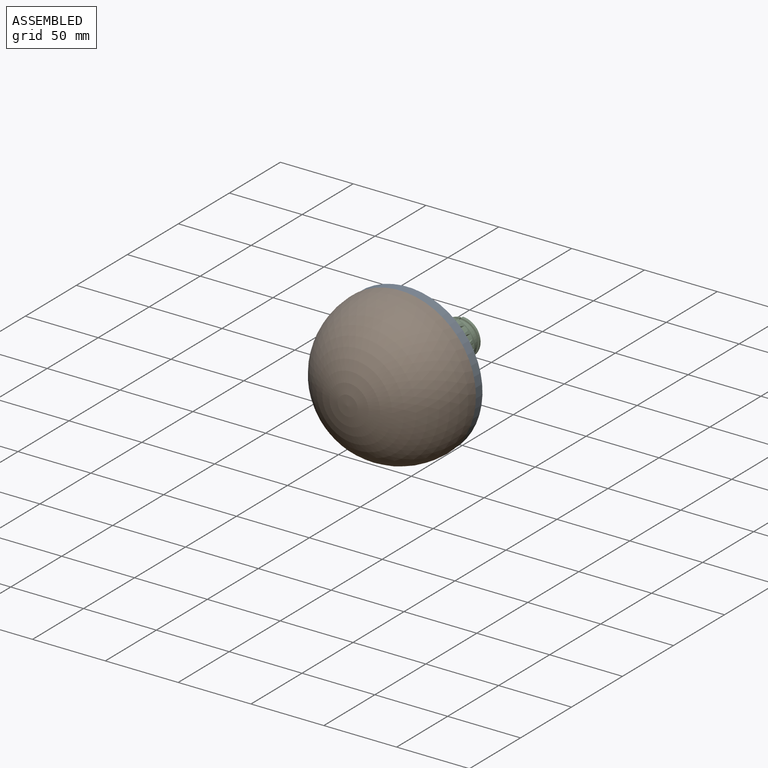
[diagram: assembled view]
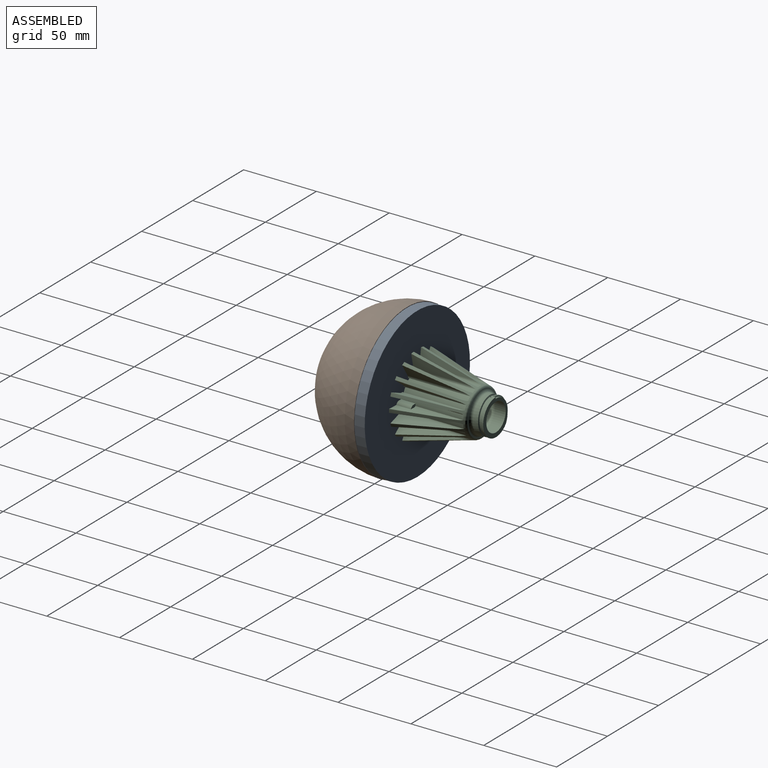
[diagram: assembled view, second angle]
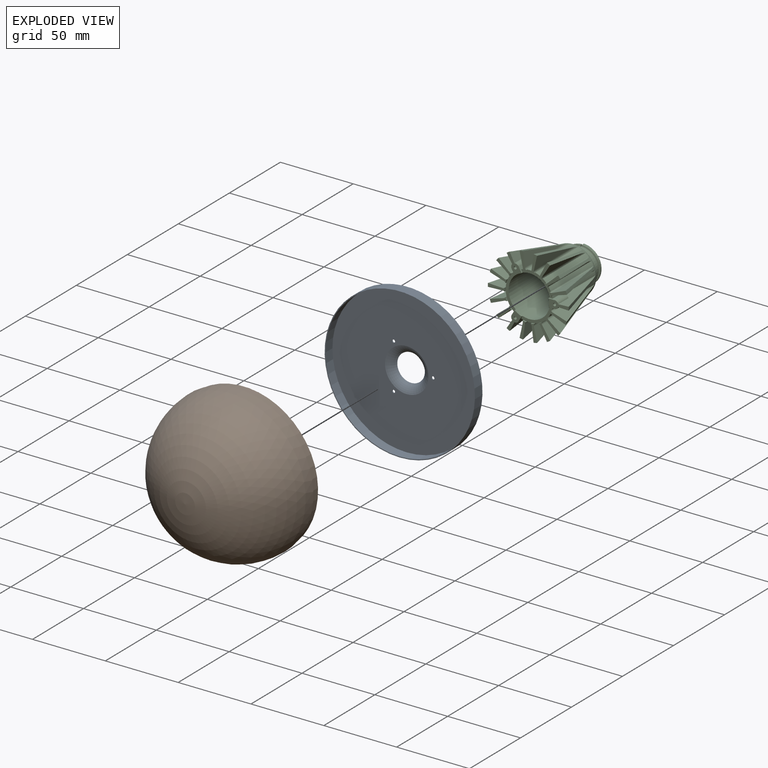
[diagram: exploded view]
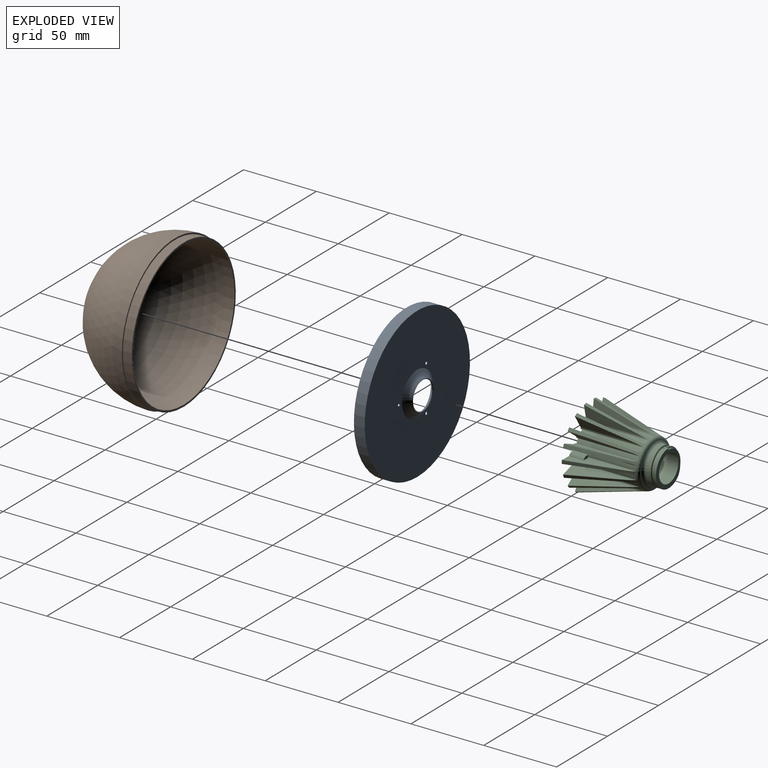
[diagram: exploded view, second angle]
ASSEMBLY  parts=3 mates=4
PART A: 11 faces, bbox 103.2x16.2x103.2 mm
  f0: cylinder r=1mm len=2mm, axis (0,1,0), area 3.8mm2, adj f4,f8
  f1: cylinder r=1mm len=2mm, axis (0,1,0), area 3.8mm2, adj f4,f8
  f2: plane 103.2x103.2mm, normal (0,-1,0), area 193.4mm2, adj f3,f9
  f3: cylinder r=51mm len=102mm, axis (0,-1,0), area 2183.2mm2, adj f2,f4
  f4: plane 102x102mm, normal (0,-1,0), area 7464mm2, adj f0,f1,f3,f5,f10
  f5: torus R=17.92mm, axis (0,-1,0), area 529.6mm2, adj f4,f6
  f6: cone r=9.49mm half-angle=58.9deg, axis (0,1,0), area 36.7mm2, adj f5,f7
  f7: torus R=17.92mm, axis (0,-1,0), area 503.8mm2, adj f6,f8
  f8: plane 103.2x103.2mm, normal (0,1,0), area 7648.4mm2, adj f0,f1,f7,f9,f10
  f9: cylinder r=51.6mm len=103.2mm, axis (0,-1,0), area 2403.4mm2, adj f2,f8
  f10: cylinder r=1mm len=2mm, axis (0,1,0), area 3.8mm2, adj f4,f8
PART B: 6 faces, bbox 104x58x104 mm
  f0: sphere r=49.75mm, area 15551.3mm2, adj f1
  f1: cylinder r=49.75mm len=99.5mm, axis (0,-1,0), area 1875.5mm2, adj f0,f2
  f2: plane 102x102mm, normal (0,1,0), area 395.6mm2, adj f1,f3
  f3: cylinder r=51mm len=102mm, axis (0,-1,0), area 1951.7mm2, adj f2,f4
  f4: plane 104x104mm, normal (0,1,0), area 323.6mm2, adj f3,f5
  f5: sphere r=52mm, area 16960.1mm2, adj f4
PART C: 175 faces, bbox 55.6x54.7x55.6 mm
  f0: cylinder r=12.5mm len=25mm, axis (0,-1,0), area 299.7mm2, adj f1,f2,f137,f169,f172
  f1: bspline ~28.87x25mm, area 96.9mm2, adj f0,f3,f169,f172
  f2: bspline ~18.75x14.43mm, area 19.1mm2, adj f0,f3,f169,f172
  f3: cylinder r=11.5mm len=23mm, axis (0,-1,0), area 152mm2, adj f1,f2,f4,f169,f170,f171,f172,f173
  f4: plane 25.07x24.08mm, normal (0,1,0), area 182.7mm2, adj f3,f135,f136,f170,f171,f172,f174
  f5: plane 10x3.32mm, normal (-0.87,0,-0.5), area 19.8mm2, adj f6,f8,f9,f11,f12,f15,f24
  f6: cylinder r=14.22mm len=4.75mm, axis (0,-1,0), area 5.5mm2, adj f5,f7,f8,f9
  f7: plane 10x3.32mm, normal (0.87,0,0.5), area 19.8mm2, adj f6,f8,f9,f10,f13,f14,f16
  f8: plane 4.76x2.77mm, normal (0,1,0), area 0.1mm2, adj f5,f6,f7,f133
  f9: plane 13.9x10.31mm, normal (0,-1,0), area 44.8mm2, adj f5,f6,f7,f11,f13,f49,f53,f140
  f10: plane 21.65x13.51mm, normal (0,-1,0), area 52.9mm2, adj f7,f16,f56,f60,f63,f67,f70,f74
  f11: cylinder r=2.75mm len=10mm, axis (0,-1,0), area 36.1mm2, adj f5,f9,f12,f49
  f12: plane 4.89x2.59mm, normal (0,1,0), area 7.1mm2, adj f5,f11,f15,f17,f49
  f13: cylinder r=2.75mm len=10mm, axis (0,-1,0), area 36.1mm2, adj f7,f9,f14,f53
  f14: plane 3.89x3.67mm, normal (0,1,0), area 7.1mm2, adj f7,f13,f16,f18,f53
  f15: cylinder r=16.25mm len=41.89mm, axis (0,-1,0), area 117.3mm2, adj f5,f12,f17,f24,f51,f140
  f16: cylinder r=16.25mm len=41.89mm, axis (0,-1,0), area 117.3mm2, adj f7,f10,f14,f18,f54,f140
  f17: cylinder r=2mm len=32.89mm, axis (0,-1,0), area 46.9mm2, adj f12,f15,f49,f140
  f18: cylinder r=2mm len=32.89mm, axis (0,-1,0), area 46.9mm2, adj f14,f16,f53,f140
  f19: plane 37.72x10.1mm, normal (-0.04,0,1), area 160.9mm2, adj f86,f89,f140,f152,f153
  f20: plane 37.72x10.1mm, normal (-0.04,0,-1), area 160.9mm2, adj f89,f93,f140,f150,f151
  f21: plane 37.72x8.97mm, normal (0.89,0,-0.46), area 160.9mm2, adj f22,f127,f140,f161,f162
  f22: cylinder r=2mm len=32.89mm, axis (0,-1,0), area 46.9mm2, adj f21,f125,f140,f162
  f23: cylinder r=2mm len=32.89mm, axis (0,-1,0), area 46.9mm2, adj f129,f131,f140,f159
  f24: plane 25x6.88mm, normal (0,-1,0), area 52.9mm2, adj f5,f15,f27,f31,f34,f38,f41,f45
  f25: plane 21.65x13.51mm, normal (0,-1,0), area 52.9mm2, adj f92,f95,f99,f102,f106,f109,f113,f116
  f26: plane 11.68x6.28mm, normal (0,-1,0), area 22.6mm2, adj f27,f29,f32,f140,f145,f146
  f27: cylinder r=16.25mm len=2.4mm, axis (0,-1,0), area 2.6mm2, adj f24,f26,f32,f145
  f28: plane 37.72x10.1mm, normal (0.04,0,-1), area 190.7mm2, adj f30,f33,f140
  f29: plane 37.72x9.65mm, normal (-0.3,0,0.95), area 190.7mm2, adj f26,f32,f140
  f30: cylinder r=2mm len=42.89mm, axis (0,-1,0), area 62.3mm2, adj f28,f31,f33,f34,f140
  f31: cylinder r=16.25mm len=41.89mm, axis (0,-1,0), area 130.6mm2, adj f24,f30,f32,f140
  f32: cylinder r=2mm len=42.89mm, axis (0,-1,0), area 62.3mm2, adj f26,f27,f29,f31,f140
  f33: plane 11.55x2.55mm, normal (0,-1,0), area 22.6mm2, adj f28,f30,f34,f36,f39,f140
  f34: cylinder r=16.25mm len=2.55mm, axis (0,-1,0), area 2.6mm2, adj f24,f30,f33,f39
  f35: plane 37.72x9.65mm, normal (-0.3,0,-0.95), area 190.7mm2, adj f37,f40,f140
  f36: plane 37.72x10.1mm, normal (0.04,0,1), area 190.7mm2, adj f33,f39,f140
  f37: cylinder r=2mm len=42.89mm, axis (0,-1,0), area 62.3mm2, adj f35,f38,f40,f41,f140
  f38: cylinder r=16.25mm len=41.89mm, axis (0,-1,0), area 130.6mm2, adj f24,f37,f39,f140
  f39: cylinder r=2mm len=42.89mm, axis (0,-1,0), area 62.3mm2, adj f33,f34,f36,f38,f140
  f40: plane 11.68x6.28mm, normal (0,-1,0), area 22.6mm2, adj f35,f37,f41,f43,f46,f140
  f41: cylinder r=16.25mm len=2.4mm, axis (0,-1,0), area 2.6mm2, adj f24,f37,f40,f46
  f42: plane 37.72x8.02mm, normal (-0.61,0,-0.79), area 190.7mm2, adj f44,f47,f140
  f43: plane 37.72x9.34mm, normal (0.38,0,0.92), area 190.7mm2, adj f40,f46,f140
  f44: cylinder r=2mm len=42.89mm, axis (0,-1,0), area 62.3mm2, adj f42,f45,f47,f48,f140
  f45: cylinder r=16.25mm len=41.89mm, axis (0,-1,0), area 130.6mm2, adj f24,f44,f46,f140
  f46: cylinder r=2mm len=42.89mm, axis (0,-1,0), area 62.3mm2, adj f40,f41,f43,f45,f140
  f47: plane 10.43x9.31mm, normal (0,-1,0), area 22.6mm2, adj f42,f44,f48,f50,f51,f140
  f48: cylinder r=16.25mm len=1.96mm, axis (0,-1,0), area 2.6mm2, adj f24,f44,f47,f51
  f49: plane 37.72x8.53mm, normal (-0.84,0,-0.54), area 160.9mm2, adj f9,f11,f12,f17,f140
  f50: plane 37.72x7.46mm, normal (0.68,0,0.74), area 190.7mm2, adj f47,f51,f140
  f51: cylinder r=2mm len=42.89mm, axis (0,-1,0), area 62.3mm2, adj f15,f47,f48,f50,f140
  f52: plane 37.72x9.87mm, normal (-0.98,0,-0.22), area 190.7mm2, adj f54,f55,f140
  f53: plane 37.72x8.97mm, normal (0.89,0,0.46), area 160.9mm2, adj f9,f13,f14,f18,f140
  f54: cylinder r=2mm len=42.89mm, axis (0,-1,0), area 62.3mm2, adj f16,f52,f55,f56,f140
  f55: plane 11.78x4.45mm, normal (0,-1,0), area 22.6mm2, adj f52,f54,f56,f58,f61,f140
  f56: cylinder r=16.25mm len=2.51mm, axis (0,-1,0), area 2.6mm2, adj f10,f54,f55,f61
  f57: plane 37.72x10.03mm, normal (-0.99,0,0.13), area 190.7mm2, adj f59,f62,f140
  f58: plane 37.72x10.03mm, normal (0.99,0,0.13), area 190.7mm2, adj f55,f61,f140
  f59: cylinder r=2mm len=42.89mm, axis (0,-1,0), area 62.3mm2, adj f57,f60,f62,f63,f140
  f60: cylinder r=16.25mm len=41.89mm, axis (0,-1,0), area 130.6mm2, adj f10,f59,f61,f140
  f61: cylinder r=2mm len=42.89mm, axis (0,-1,0), area 62.3mm2, adj f55,f56,f58,f60,f140
  f62: plane 11.78x4.45mm, normal (0,-1,0), area 22.6mm2, adj f57,f59,f63,f65,f68,f140
  f63: cylinder r=16.25mm len=2.51mm, axis (0,-1,0), area 2.6mm2, adj f10,f59,f62,f68
  f64: plane 37.72x8.97mm, normal (-0.89,0,0.46), area 190.7mm2, adj f66,f69,f140
  f65: plane 37.72x9.87mm, normal (0.98,0,-0.22), area 190.7mm2, adj f62,f68,f140
  f66: cylinder r=2mm len=42.89mm, axis (0,-1,0), area 62.3mm2, adj f64,f67,f69,f70,f140
  f67: cylinder r=16.25mm len=41.89mm, axis (0,-1,0), area 130.6mm2, adj f10,f66,f68,f140
  f68: cylinder r=2mm len=42.89mm, axis (0,-1,0), area 62.3mm2, adj f62,f63,f65,f67,f140
  f69: plane 11.22x7.92mm, normal (0,-1,0), area 22.6mm2, adj f64,f66,f70,f72,f75,f140
  f70: cylinder r=16.25mm len=2.21mm, axis (0,-1,0), area 2.6mm2, adj f10,f66,f69,f75
  f71: plane 37.72x7.46mm, normal (-0.68,0,0.74), area 190.7mm2, adj f73,f76,f140
  f72: plane 37.72x8.53mm, normal (0.84,0,-0.54), area 190.7mm2, adj f69,f75,f140
  f73: cylinder r=2mm len=42.89mm, axis (0,-1,0), area 62.3mm2, adj f71,f74,f76,f77,f140
  f74: cylinder r=16.25mm len=41.89mm, axis (0,-1,0), area 130.6mm2, adj f10,f73,f75,f140
  f75: cylinder r=2mm len=42.89mm, axis (0,-1,0), area 62.3mm2, adj f69,f70,f72,f74,f140
  f76: plane 10.43x9.31mm, normal (0,-1,0), area 22.6mm2, adj f71,f73,f77,f79,f82,f140
  f77: cylinder r=16.25mm len=1.96mm, axis (0,-1,0), area 2.6mm2, adj f10,f73,f76,f82
  f78: plane 37.72x9.34mm, normal (-0.38,0,0.92), area 190.7mm2, adj f80,f83,f140
  f79: plane 37.72x8.02mm, normal (0.61,0,-0.79), area 190.7mm2, adj f76,f82,f140
  f80: cylinder r=2mm len=42.89mm, axis (0,-1,0), area 62.3mm2, adj f78,f81,f83,f84,f140
  f81: cylinder r=16.25mm len=41.89mm, axis (0,-1,0), area 130.6mm2, adj f10,f80,f82,f140
  f82: cylinder r=2mm len=42.89mm, axis (0,-1,0), area 62.3mm2, adj f76,f77,f79,f81,f140
  f83: plane 11.68x6.28mm, normal (0,-1,0), area 22.6mm2, adj f78,f80,f84,f85,f88,f140
  f84: cylinder r=16.25mm len=2.4mm, axis (0,-1,0), area 2.6mm2, adj f10,f80,f83,f88
  f85: plane 37.72x9.65mm, normal (0.3,0,-0.95), area 190.7mm2, adj f83,f88,f140
  f86: cylinder r=2mm len=32.89mm, axis (0,-1,0), area 46.9mm2, adj f19,f87,f140,f152
  f87: cylinder r=16.25mm len=41.89mm, axis (0,-1,0), area 117.3mm2, adj f10,f86,f88,f140,f149,f152
  f88: cylinder r=2mm len=42.89mm, axis (0,-1,0), area 62.3mm2, adj f83,f84,f85,f87,f140
  f89: plane 13.79x5.5mm, normal (0,-1,0), area 44.8mm2, adj f19,f20,f140,f147,f148,f149,f151,f153
  f90: plane 37.72x9.65mm, normal (0.3,0,0.95), area 190.7mm2, adj f91,f94,f140
  f91: cylinder r=2mm len=42.89mm, axis (0,-1,0), area 62.3mm2, adj f90,f92,f94,f95,f140
  f92: cylinder r=16.25mm len=41.89mm, axis (0,-1,0), area 117.3mm2, adj f25,f91,f93,f140,f148,f150
  f93: cylinder r=2mm len=32.89mm, axis (0,-1,0), area 46.9mm2, adj f20,f92,f140,f150
  f94: plane 11.68x6.28mm, normal (0,-1,0), area 22.6mm2, adj f90,f91,f95,f97,f100,f140
  f95: cylinder r=16.25mm len=2.4mm, axis (0,-1,0), area 2.6mm2, adj f25,f91,f94,f100
  f96: plane 37.72x8.02mm, normal (0.61,0,0.79), area 190.7mm2, adj f98,f101,f140
  f97: plane 37.72x9.34mm, normal (-0.38,0,-0.92), area 190.7mm2, adj f94,f100,f140
  f98: cylinder r=2mm len=42.89mm, axis (0,-1,0), area 62.3mm2, adj f96,f99,f101,f102,f140
  f99: cylinder r=16.25mm len=41.89mm, axis (0,-1,0), area 130.6mm2, adj f25,f98,f100,f140
  f100: cylinder r=2mm len=42.89mm, axis (0,-1,0), area 62.3mm2, adj f94,f95,f97,f99,f140
  f101: plane 10.43x9.31mm, normal (0,-1,0), area 22.6mm2, adj f96,f98,f102,f104,f107,f140
  f102: cylinder r=16.25mm len=1.96mm, axis (0,-1,0), area 2.6mm2, adj f25,f98,f101,f107
  f103: plane 37.72x8.53mm, normal (0.84,0,0.54), area 190.7mm2, adj f105,f108,f140
  f104: plane 37.72x7.46mm, normal (-0.68,0,-0.74), area 190.7mm2, adj f101,f107,f140
  f105: cylinder r=2mm len=42.89mm, axis (0,-1,0), area 62.3mm2, adj f103,f106,f108,f109,f140
  f106: cylinder r=16.25mm len=41.89mm, axis (0,-1,0), area 130.6mm2, adj f25,f105,f107,f140
  f107: cylinder r=2mm len=42.89mm, axis (0,-1,0), area 62.3mm2, adj f101,f102,f104,f106,f140
  f108: plane 11.22x7.92mm, normal (0,-1,0), area 22.6mm2, adj f103,f105,f109,f111,f114,f140
  f109: cylinder r=16.25mm len=2.21mm, axis (0,-1,0), area 2.6mm2, adj f25,f105,f108,f114
  f110: plane 37.72x9.87mm, normal (0.98,0,0.22), area 190.7mm2, adj f112,f115,f140
  f111: plane 37.72x8.97mm, normal (-0.89,0,-0.46), area 190.7mm2, adj f108,f114,f140
  f112: cylinder r=2mm len=42.89mm, axis (0,-1,0), area 62.3mm2, adj f110,f113,f115,f116,f140
  f113: cylinder r=16.25mm len=41.89mm, axis (0,-1,0), area 130.6mm2, adj f25,f112,f114,f140
  f114: cylinder r=2mm len=42.89mm, axis (0,-1,0), area 62.3mm2, adj f108,f109,f111,f113,f140
  f115: plane 11.78x4.45mm, normal (0,-1,0), area 22.6mm2, adj f110,f112,f116,f118,f121,f140
  f116: cylinder r=16.25mm len=2.51mm, axis (0,-1,0), area 2.6mm2, adj f25,f112,f115,f121
  f117: plane 37.72x10.03mm, normal (0.99,0,-0.13), area 190.7mm2, adj f119,f122,f140
  f118: plane 37.72x10.03mm, normal (-0.99,0,-0.13), area 190.7mm2, adj f115,f121,f140
  f119: cylinder r=2mm len=42.89mm, axis (0,-1,0), area 62.3mm2, adj f117,f120,f122,f123,f140
  f120: cylinder r=16.25mm len=41.89mm, axis (0,-1,0), area 130.6mm2, adj f25,f119,f121,f140
  f121: cylinder r=2mm len=42.89mm, axis (0,-1,0), area 62.3mm2, adj f115,f116,f118,f120,f140
  f122: plane 11.78x4.45mm, normal (0,-1,0), area 22.6mm2, adj f117,f119,f123,f124,f126,f140
  f123: cylinder r=16.25mm len=2.51mm, axis (0,-1,0), area 2.6mm2, adj f25,f119,f122,f126
  f124: plane 37.72x9.87mm, normal (-0.98,0,0.22), area 190.7mm2, adj f122,f126,f140
  f125: cylinder r=16.25mm len=41.89mm, axis (0,-1,0), area 117.3mm2, adj f22,f25,f126,f140,f155,f162
  f126: cylinder r=2mm len=42.89mm, axis (0,-1,0), area 62.3mm2, adj f122,f123,f124,f125,f140
  f127: plane 13.9x10.31mm, normal (0,-1,0), area 44.8mm2, adj f21,f129,f140,f155,f156,f157,f160,f161
  f128: plane 37.72x7.46mm, normal (0.68,0,-0.74), area 190.7mm2, adj f130,f140,f141
  f129: plane 37.72x8.53mm, normal (-0.84,0,0.54), area 160.9mm2, adj f23,f127,f140,f159,f160
  f130: cylinder r=2mm len=42.89mm, axis (0,-1,0), area 62.3mm2, adj f128,f131,f132,f140,f141
  f131: cylinder r=16.25mm len=41.89mm, axis (0,-1,0), area 117.3mm2, adj f23,f24,f130,f140,f157,f159
  f132: cylinder r=16.25mm len=1.96mm, axis (0,-1,0), area 2.6mm2, adj f24,f130,f141,f143
  f133: cylinder r=14.25mm len=41.87mm, axis (0,-1,0), area 3748.6mm2, adj f8,f10,f24,f25,f134,f154,f158
  f134: torus R=13.5mm, axis (0,-1,0), area 502mm2, adj f133,f135
  f135: cylinder r=9.5mm len=19mm, axis (0,-1,0), area 426.3mm2, adj f4,f134
  f136: cylinder r=12.5mm len=25mm, axis (0,-1,0), area 50.9mm2, adj f4,f170,f171
  f137: torus R=14.5mm, axis (0,-1,0), area 247.5mm2, adj f0,f138
  f138: cone r=14.62mm half-angle=85.7deg, axis (0,-1,0), area 24.5mm2, adj f137,f139
  f139: torus R=14.5mm, axis (0,-1,0), area 191.7mm2, adj f138,f140
  f140: cone r=27.75mm half-angle=15deg, axis (0,-1,0), area 1671.7mm2, adj f9,f15,f16,f17,f18,f19,f20,f21
  f141: plane 10.43x9.31mm, normal (0,-1,0), area 22.6mm2, adj f128,f130,f132,f140,f142,f143
  f142: plane 37.72x8.02mm, normal (-0.61,0,0.79), area 190.7mm2, adj f140,f141,f143
  f143: cylinder r=2mm len=42.89mm, axis (0,-1,0), area 62.3mm2, adj f132,f140,f141,f142,f144
  f144: cylinder r=16.25mm len=41.89mm, axis (0,-1,0), area 130.6mm2, adj f24,f140,f143,f145
  f145: cylinder r=2mm len=42.89mm, axis (0,-1,0), area 62.3mm2, adj f26,f27,f140,f144,f146
  f146: plane 37.72x9.34mm, normal (0.38,0,-0.92), area 190.7mm2, adj f26,f140,f145
  f147: cylinder r=14.22mm len=5.48mm, axis (0,-1,0), area 5.5mm2, adj f89,f148,f149,f154
  f148: plane 10x3.83mm, normal (0,0,-1), area 19.8mm2, adj f25,f89,f92,f147,f150,f151,f154
  f149: plane 10x3.83mm, normal (0,0,1), area 19.8mm2, adj f10,f87,f89,f147,f152,f153,f154
  f150: plane 4.58x1.98mm, normal (0,1,0), area 7.1mm2, adj f20,f92,f93,f148,f151
  f151: cylinder r=2.75mm len=10mm, axis (0,-1,0), area 36.1mm2, adj f20,f89,f148,f150
  f152: plane 4.58x1.98mm, normal (0,1,0), area 7.1mm2, adj f19,f86,f87,f149,f153
  f153: cylinder r=2.75mm len=10mm, axis (0,-1,0), area 36.1mm2, adj f19,f89,f149,f152
  f154: plane 5.48x0.29mm, normal (0,1,0), area 0.1mm2, adj f133,f147,f148,f149
  f155: plane 10x3.32mm, normal (0.87,0,-0.5), area 19.8mm2, adj f25,f125,f127,f156,f158,f161,f162
  f156: cylinder r=14.22mm len=4.75mm, axis (0,-1,0), area 5.5mm2, adj f127,f155,f157,f158
  f157: plane 10x3.32mm, normal (-0.87,0,0.5), area 19.8mm2, adj f24,f127,f131,f156,f158,f159,f160
  f158: plane 4.76x2.77mm, normal (0,1,0), area 0.1mm2, adj f133,f155,f156,f157
  f159: plane 4.89x2.59mm, normal (0,1,0), area 7.1mm2, adj f23,f129,f131,f157,f160
  f160: cylinder r=2.75mm len=10mm, axis (0,-1,0), area 36.1mm2, adj f127,f129,f157,f159
  f161: cylinder r=2.75mm len=10mm, axis (0,-1,0), area 36.1mm2, adj f21,f127,f155,f162
  f162: plane 3.89x3.67mm, normal (0,1,0), area 7.1mm2, adj f21,f22,f125,f155,f161
  f163: cone r=0mm half-angle=59deg, axis (0,-1,0), area 3.7mm2, adj f164
  f164: cylinder r=1mm len=6mm, axis (0,-1,0), area 37.7mm2, adj f127,f163
  f165: cone r=0mm half-angle=59deg, axis (0,-1,0), area 3.7mm2, adj f166
  f166: cylinder r=1mm len=6mm, axis (0,-1,0), area 37.7mm2, adj f89,f165
  f167: cone r=0mm half-angle=59deg, axis (0,-1,0), area 3.7mm2, adj f168
  f168: cylinder r=1mm len=6mm, axis (0,-1,0), area 37.7mm2, adj f9,f167
  f169: plane 2.3x1mm, normal (0,0,1), area 2.1mm2, adj f0,f1,f2,f3
  f170: bspline ~28.87x25mm, area 52.5mm2, adj f3,f4,f136,f171
  f171: plane 4x1.25mm, normal (-1,0,0), area 3.2mm2, adj f3,f4,f136,f170,f173,f174
  f172: plane 4x1.25mm, normal (1,0,0), area 2.1mm2, adj f0,f1,f2,f3,f4,f173,f174
  f173: plane 0.6x0.25mm, normal (0,1,0), area 0.2mm2, adj f3,f171,f172,f174
  f174: plane 4x0.6mm, normal (0,0,1), area 2.4mm2, adj f4,f171,f172,f173
PLACE A t=(-65.63,-131.56,-32.29)mm
PLACE B t=(-65.63,-132.52,-32.29)mm
PLACE C t=(-65.63,-131.56,-32.29)mm
MATE cylindrical A.f0 <-> C.f11  axis (0,1,0) through (-74.63,-132.16,-16.7)mm
MATE cylindrical C.f151 <-> A.f10  axis (0,-1,0) through (-47.63,-131.56,-32.29)mm
MATE planar C.f89 <-> A.f3  axis (0,-1,0) through (-45.03,-131.56,-31.39)mm
MATE cylindrical B.f1 <-> A.f3  axis (0,-1,0) through (-65.63,-135.57,-32.29)mm
